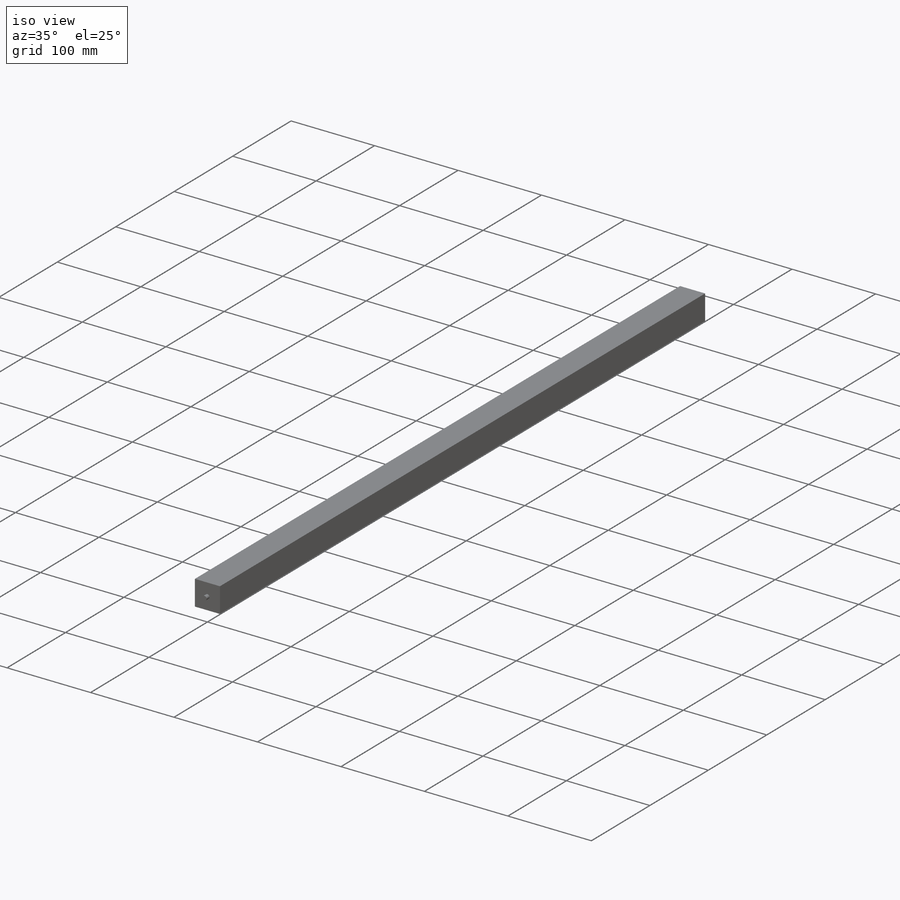
[diagram: iso view]
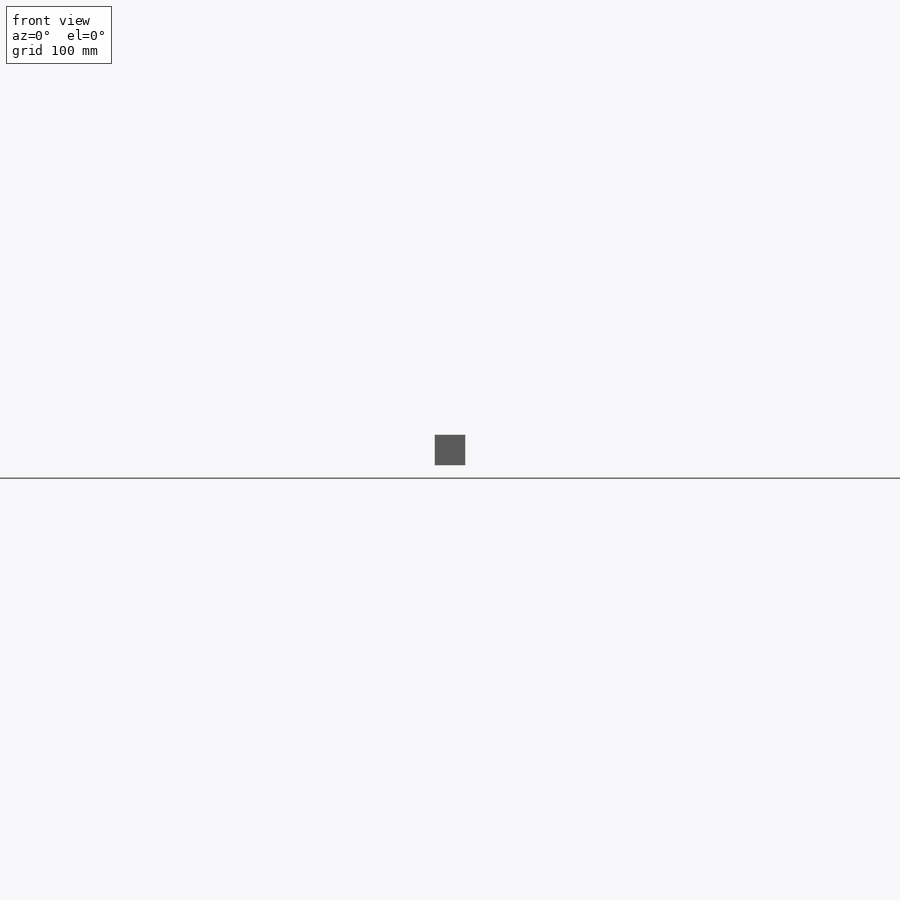
[diagram: front view]
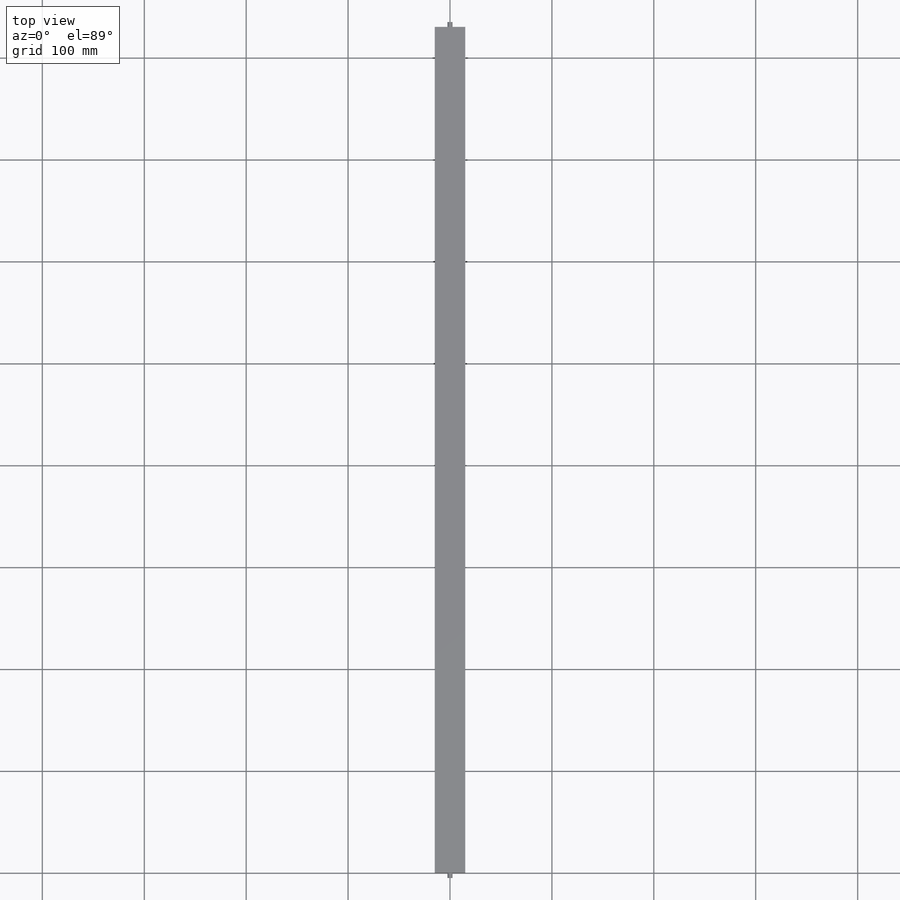
[diagram: top view]
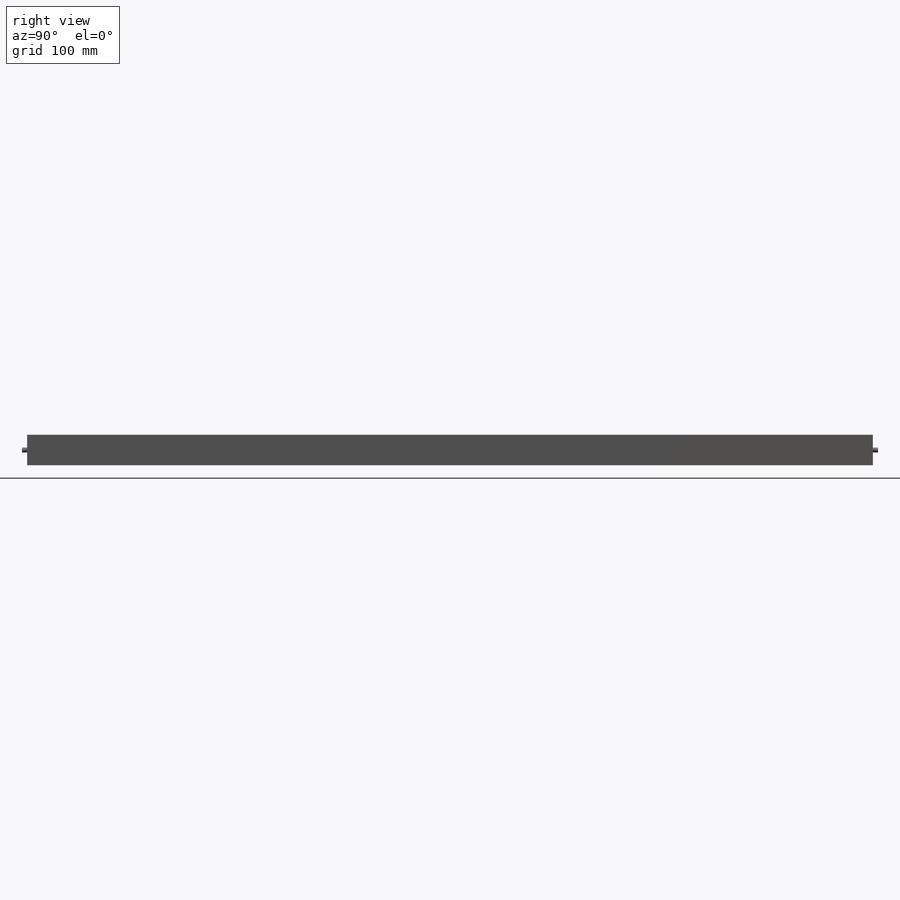
[diagram: right view]
SOLIDWORKS PART (.sldprt)
format: sldprt  version: not decoded by parser v0  size: 150,016 bytes
history: native  units: mm
features: sketch x3, extrude x3, material x1 (+13 scaffold rows collapsed)
feature tree (20):
  scaffold x13  (default folders/planes/origin — collapsed)
  material  "Material <not specified>"
  sketch  "Sketch1"  dims[D1=830.0mm D2=30.0mm]
  extrude  "Boss-Extrude1"  Depth=30mm
  sketch  "Sketch3"  dims[c1.D1=5.0mm c1.D3=5.0mm c1.D2=15.0mm c2.D3=15.0mm]
  sketch  "Sketch4"  dims[D1=5.0mm D2=15.0mm]
  extrude  "Boss-Extrude2"  Depth=10mm
  extrude  "Boss-Extrude3"  Depth=10mm
decode coverage: 6 of 6 modeling features carry decoded parameters
note: suppression state not decoded; provenance and decode notes live in map.json
